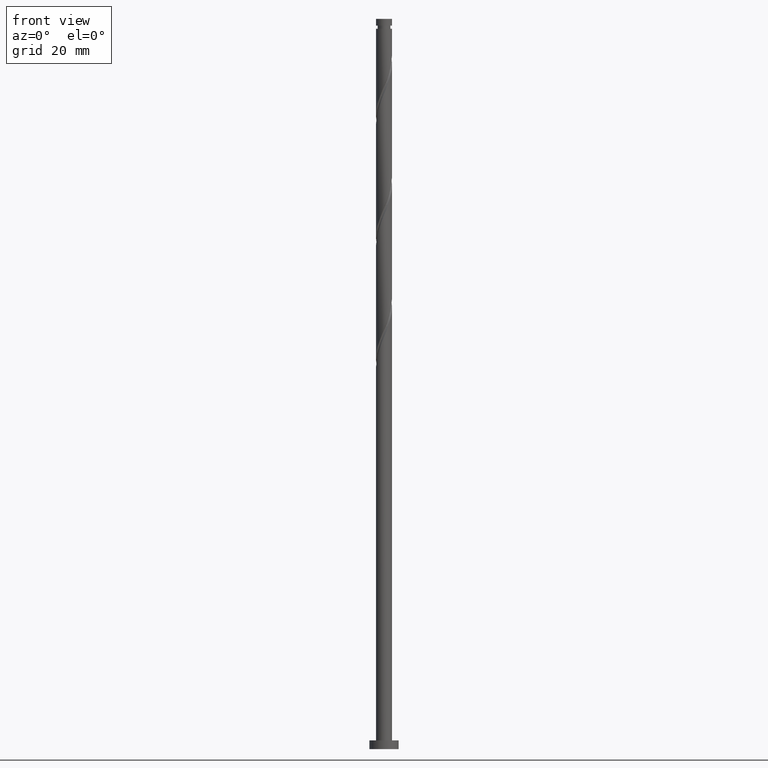
[diagram: clean part render]
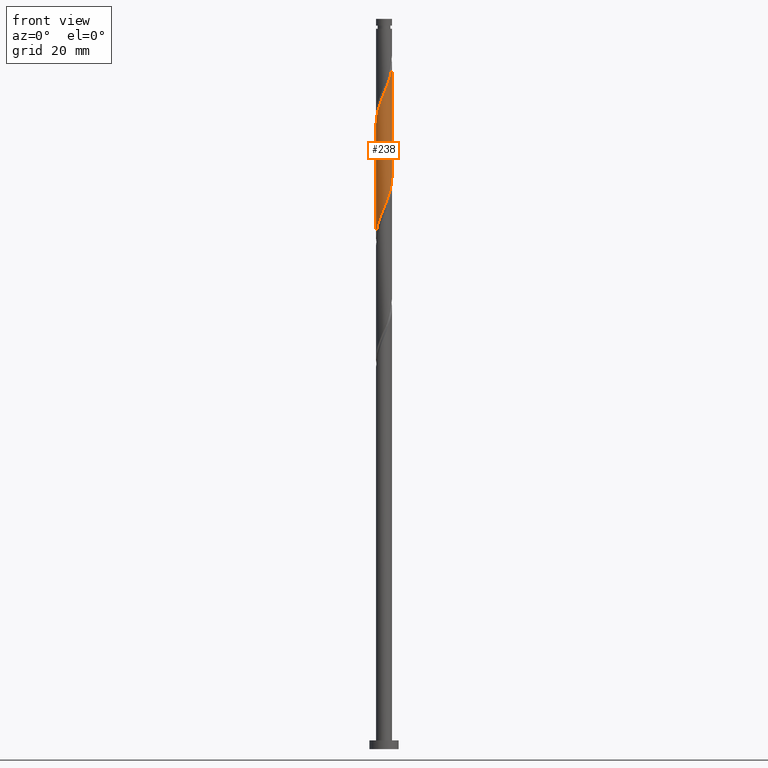
[diagram: same view with one face highlighted and labeled with its STEP entity id]
A machine part, front view. The second image highlights one B-rep face of the part: STEP entity #238.
In plain terms, the highlighted cylindrical surface (edge-blend (fillet) strip) has radius 2.75 mm, axis along (-0, -0, -1).
Its self-contained STEP definition (entity closure, byte-faithful):
#70 = CARTESIAN_POINT ( 'NONE',  ( 2.503981196414451382, -1.184936436776526270, 192.9100005478137518 ) ) ;
#86 = CARTESIAN_POINT ( 'NONE',  ( -2.528811026136764006, -1.080562258312367074, 177.6856415734547738 ) ) ;
#99 = CARTESIAN_POINT ( 'NONE',  ( 2.714793904153014026, -0.5512624140746728019, 194.5125646503778967 ) ) ;
#105 = EDGE_CURVE ( 'NONE', #123, #748, #1307, .T. ) ;
#114 = CARTESIAN_POINT ( 'NONE',  ( 0.5472430904086433845, -2.695000000000004725, 225.7625646503778682 ) ) ;
#123 = VERTEX_POINT ( 'NONE', #894 ) ;
#166 = DIRECTION ( 'NONE',  ( -0.000000000000000000, -0.000000000000000000, -1.000000000000000000 ) ) ;
#170 = CARTESIAN_POINT ( 'NONE',  ( 2.749999999999999556, 2.811716444257881185E-15, 195.8404865262697285 ) ) ;
#213 = CARTESIAN_POINT ( 'NONE',  ( 0.1136145144797496981, -2.747652041671130085, 185.6984620862752706 ) ) ;
#235 = CARTESIAN_POINT ( 'NONE',  ( 2.397607013737355963, -1.387615508300216627, 231.3715390093522615 ) ) ;
#238 = ADVANCED_FACE ( 'NONE', ( #890 ), #1715, .T. ) ;
#245 =( BOUNDED_CURVE ( )  B_SPLINE_CURVE ( 2, ( #944, #1373, #1452, #1210, #551, #1501, #1797, #1099, #824, #1609, #1182, #679, #1808, #1380, #1490, #1220, #114, #397, #625, #536, #1752, #668, #758, #235, #543, #1081, #1093, #802, #660 ),
 .UNSPECIFIED., .F., .T. ) 
 B_SPLINE_CURVE_WITH_KNOTS ( ( 3, 2, 2, 2, 2, 2, 2, 2, 2, 2, 2, 2, 2, 2, 3 ),
 ( 0.5545271625973832164, 0.5576923076923077094, 0.5673076923076922906, 0.5769230769230768718, 0.5865384615384615641, 0.5961538461538461453, 0.6057692307692308376, 0.6153846153846154188, 0.6250000000000000000, 0.6346153846153845812, 0.6442307692307691624, 0.6538461538461538547, 0.6634615384615384359, 0.6730769230769231282, 0.6795271625973832164 ),
 .UNSPECIFIED. ) 
 CURVE ( )  GEOMETRIC_REPRESENTATION_ITEM ( )  RATIONAL_B_SPLINE_CURVE ( ( 0.9061636035682953949, 0.9069090390690839332, 0.9090909090909405910, 0.9024626128164440209, 0.9090909090909405910, 0.9024626128164440209, 0.9090909090909405910, 0.9024626128164440209, 0.9090909090909405910, 0.9024626128164440209, 0.9090909090909405910, 0.9024626128164440209, 0.9090909090909405910, 0.9024626128164440209, 0.9090909090909405910, 0.9024626128164440209, 0.9090909090909405910, 0.9024626128164440209, 0.9090909090909405910, 0.9024626128164440209, 0.9090909090909405910, 0.9024626128164440209, 0.9090909090909405910, 0.9024626128164440209, 0.9090909090909405910, 0.9024626128164440209, 0.9090909090909405910, 0.9046444828383006787, 0.9061636035682953949 ) ) 
 REPRESENTATION_ITEM ( '' )  );
#287 = EDGE_LOOP ( 'NONE', ( #910, #956, #1049, #665 ) ) ;
#359 = CARTESIAN_POINT ( 'NONE',  ( -2.397607013737352855, -1.387615508300211964, 178.4869236247368747 ) ) ;
#397 = CARTESIAN_POINT ( 'NONE',  ( 0.8744753351926358720, -2.628552658657907770, 226.5638467016599122 ) ) ;
#457 = DIRECTION ( 'NONE',  ( -1.000000000000000000, 0.000000000000000000, 0.000000000000000000 ) ) ;
#463 = AXIS2_PLACEMENT_3D ( 'NONE', #1037, #166, #457 ) ;
#464 = EDGE_CURVE ( 'NONE', #1674, #123, #245, .T. ) ;
#501 = CARTESIAN_POINT ( 'NONE',  ( -1.736988640557373564, -2.131987444281659982, 180.8907697785829498 ) ) ;
#511 = CARTESIAN_POINT ( 'NONE',  ( 1.088498638932923424, -2.547384325978114372, 188.1023082401214026 ) ) ;
#519 = CARTESIAN_POINT ( 'NONE',  ( -1.478118496867735443, -2.342896049852674079, 181.6920518298649938 ) ) ;
#530 = CARTESIAN_POINT ( 'NONE',  ( 2.741313281104775346, -0.2184067188494102918, 195.3138467016599122 ) ) ;
#536 = CARTESIAN_POINT ( 'NONE',  ( 1.478118496867736553, -2.342896049852680296, 228.1664108042240571 ) ) ;
#541 = CARTESIAN_POINT ( 'NONE',  ( -2.750000000000002220, -0.2234552059768610544, 175.5468539302847262 ) ) ;
#543 = CARTESIAN_POINT ( 'NONE',  ( 2.528811026136768447, -1.080562258312370183, 232.1728210606342770 ) ) ;
#551 = CARTESIAN_POINT ( 'NONE',  ( -2.609387550283738033, -0.8680994254256000353, 216.1471800349932835 ) ) ;
#621 =( BOUNDED_CURVE ( )  B_SPLINE_CURVE ( 2, ( #1096, #949, #530, #99, #1666, #70, #916, #1484, #674, #937, #1622, #511, #1503, #1191, #213, #1465, #1054, #1226, #1086, #519, #501, #1497, #1655, #359, #86, #656, #1803, #541, #1073 ),
 .UNSPECIFIED., .F., .T. ) 
 B_SPLINE_CURVE_WITH_KNOTS ( ( 3, 2, 2, 2, 2, 2, 2, 2, 2, 2, 2, 2, 2, 2, 3 ),
 ( 0.5545271625973833274, 0.5576923076923077094, 0.5673076923076922906, 0.5769230769230768718, 0.5865384615384615641, 0.5961538461538461453, 0.6057692307692307265, 0.6153846153846154188, 0.6250000000000000000, 0.6346153846153845812, 0.6442307692307692735, 0.6538461538461538547, 0.6634615384615384359, 0.6730769230769231282, 0.6795271625973836604 ),
 .UNSPECIFIED. ) 
 CURVE ( )  GEOMETRIC_REPRESENTATION_ITEM ( )  RATIONAL_B_SPLINE_CURVE ( ( 0.9061636035682884005, 0.9069090390690770498, 0.9090909090909334855, 0.9024626128164369154, 0.9090909090909334855, 0.9024626128164369154, 0.9090909090909334855, 0.9024626128164369154, 0.9090909090909334855, 0.9024626128164369154, 0.9090909090909334855, 0.9024626128164369154, 0.9090909090909334855, 0.9024626128164369154, 0.9090909090909334855, 0.9024626128164369154, 0.9090909090909334855, 0.9024626128164369154, 0.9090909090909334855, 0.9024626128164369154, 0.9090909090909334855, 0.9024626128164369154, 0.9090909090909334855, 0.9024626128164369154, 0.9090909090909334855, 0.9024626128164369154, 0.9090909090909334855, 0.9046444828382932402, 0.9061636035682884005 ) ) 
 REPRESENTATION_ITEM ( '' )  );
#625 = CARTESIAN_POINT ( 'NONE',  ( 1.176296916030185935, -2.485724354255294255, 227.3651287529420131 ) ) ;
#656 = CARTESIAN_POINT ( 'NONE',  ( -2.660015038536175602, -0.7735090083245215187, 176.8843595221727298 ) ) ;
#660 = CARTESIAN_POINT ( 'NONE',  ( 2.750000000000003553, -3.140747091990160614E-16, 234.8513094411526367 ) ) ;
#665 = ORIENTED_EDGE ( 'NONE', *, *, #1604, .F. ) ;
#668 = CARTESIAN_POINT ( 'NONE',  ( 1.995858784247013684, -1.921078838710650327, 229.7689749067881735 ) ) ;
#674 = CARTESIAN_POINT ( 'NONE',  ( 1.907072011030042091, -1.981306726568561771, 190.5061543939675914 ) ) ;
#679 = CARTESIAN_POINT ( 'NONE',  ( -1.088498638932926976, -2.547384325978117925, 221.7561543939675630 ) ) ;
#748 = VERTEX_POINT ( 'NONE', #170 ) ;
#758 = CARTESIAN_POINT ( 'NONE',  ( 2.196732898992184158, -1.654347173505433144, 230.5702569580701891 ) ) ;
#767 = LINE ( 'NONE', #1062, #1050 ) ;
#773 = CARTESIAN_POINT ( 'NONE',  ( -2.750000000000003553, -1.046915697330053620E-16, 214.0179761078192939 ) ) ;
#802 = CARTESIAN_POINT ( 'NONE',  ( 2.750000000000003553, -0.2234552059768777077, 234.3116087038043531 ) ) ;
#824 = CARTESIAN_POINT ( 'NONE',  ( -1.907072011030046310, -1.981306726568564658, 219.3523082401214879 ) ) ;
#846 = CARTESIAN_POINT ( 'NONE',  ( -2.749999999999999556, 1.915855726114013589E-14, 175.0071531929363289 ) ) ;
#890 = FACE_OUTER_BOUND ( 'NONE', #287, .T. ) ;
#894 = CARTESIAN_POINT ( 'NONE',  ( 2.750000000000003553, -3.140747091990160614E-16, 234.8513094411526367 ) ) ;
#910 = ORIENTED_EDGE ( 'NONE', *, *, #105, .F. ) ;
#916 = CARTESIAN_POINT ( 'NONE',  ( 2.325813699778025434, -1.467341348809077850, 192.1087184965317078 ) ) ;
#937 = CARTESIAN_POINT ( 'NONE',  ( 1.666497818918481588, -2.212867192295493446, 189.7048723426855190 ) ) ;
#944 = CARTESIAN_POINT ( 'NONE',  ( -2.750000000000003553, -1.046915697330053743E-16, 214.0179761078192939 ) ) ;
#949 = CARTESIAN_POINT ( 'NONE',  ( 2.749999999999999112, -0.1093761084261168498, 195.5763156106367262 ) ) ;
#956 = ORIENTED_EDGE ( 'NONE', *, *, #464, .F. ) ;
#1037 = CARTESIAN_POINT ( 'NONE',  ( 0.000000000000000000, 0.000000000000000000, 250.0000000000000000 ) ) ;
#1049 = ORIENTED_EDGE ( 'NONE', *, *, #1668, .T. ) ;
#1050 = VECTOR ( 'NONE', #1336, 1000.000000000000000 ) ;
#1054 = CARTESIAN_POINT ( 'NONE',  ( -0.5472430904086434955, -2.694999999999998508, 184.0958979837111258 ) ) ;
#1062 = CARTESIAN_POINT ( 'NONE',  ( -2.750000000000000000, 0.000000000000000000, 250.0000000000000000 ) ) ;
#1073 = CARTESIAN_POINT ( 'NONE',  ( -2.749999999999999556, 1.915855726114013589E-14, 175.0071531929363289 ) ) ;
#1081 = CARTESIAN_POINT ( 'NONE',  ( 2.660015038536180043, -0.7735090083245254045, 232.9741031119163495 ) ) ;
#1086 = CARTESIAN_POINT ( 'NONE',  ( -1.176296916030186157, -2.485724354255287594, 182.4933338811470662 ) ) ;
#1093 = CARTESIAN_POINT ( 'NONE',  ( 2.713923848296361019, -0.4439789923501908930, 233.7753851631983935 ) ) ;
#1096 = CARTESIAN_POINT ( 'NONE',  ( 2.749999999999999556, 2.811716444257881185E-15, 195.8404865262697285 ) ) ;
#1099 = CARTESIAN_POINT ( 'NONE',  ( -2.147646203141606591, -1.749746260841631651, 218.5510261888393586 ) ) ;
#1182 = CARTESIAN_POINT ( 'NONE',  ( -1.377498228925706947, -2.380125759136808128, 220.9548723426855759 ) ) ;
#1191 = CARTESIAN_POINT ( 'NONE',  ( 0.4472398745841510426, -2.733856742000163820, 186.4997441375572862 ) ) ;
#1210 = CARTESIAN_POINT ( 'NONE',  ( -2.714793904153019355, -0.5512624140746725798, 215.3458979837111826 ) ) ;
#1220 = CARTESIAN_POINT ( 'NONE',  ( 0.2200108456246498978, -2.761447341342100348, 224.9612825990958527 ) ) ;
#1226 = CARTESIAN_POINT ( 'NONE',  ( -0.8744753351926364271, -2.628552658657902885, 183.2946159324291671 ) ) ;
#1233 = VERTEX_POINT ( 'NONE', #846 ) ;
#1249 = VECTOR ( 'NONE', #1743, 1000.000000000000000 ) ;
#1307 = LINE ( 'NONE', #1592, #1249 ) ;
#1336 = DIRECTION ( 'NONE',  ( -0.000000000000000000, -0.000000000000000000, -1.000000000000000000 ) ) ;
#1373 = CARTESIAN_POINT ( 'NONE',  ( -2.750000000000004441, -0.1093761084261107158, 214.2821470234522678 ) ) ;
#1380 = CARTESIAN_POINT ( 'NONE',  ( -0.4472398745841543177, -2.733856742000169149, 223.3587184965316794 ) ) ;
#1452 = CARTESIAN_POINT ( 'NONE',  ( -2.741313281104781119, -0.2184067188494077938, 214.5446159324291386 ) ) ;
#1465 = CARTESIAN_POINT ( 'NONE',  ( -0.2200108456246517574, -2.761447341342095019, 184.8971800349932266 ) ) ;
#1484 = CARTESIAN_POINT ( 'NONE',  ( 2.147646203141600818, -1.749746260841629875, 191.3074364452496638 ) ) ;
#1490 = CARTESIAN_POINT ( 'NONE',  ( -0.1136145144797522794, -2.747652041671134082, 224.1600005478138087 ) ) ;
#1497 = CARTESIAN_POINT ( 'NONE',  ( -1.995858784247010798, -1.921078838710645442, 180.0894877273009342 ) ) ;
#1501 = CARTESIAN_POINT ( 'NONE',  ( -2.503981196414456711, -1.184936436776527824, 216.9484620862752422 ) ) ;
#1503 = CARTESIAN_POINT ( 'NONE',  ( 0.7678692567585380102, -2.640620533989138874, 187.3010261888393870 ) ) ;
#1592 = CARTESIAN_POINT ( 'NONE',  ( 2.750000000000000000, 3.367778697655221012E-16, 250.0000000000000000 ) ) ;
#1604 = EDGE_CURVE ( 'NONE', #748, #1233, #621, .T. ) ;
#1609 = CARTESIAN_POINT ( 'NONE',  ( -1.666497818918486251, -2.212867192295496555, 220.1535902914035034 ) ) ;
#1622 = CARTESIAN_POINT ( 'NONE',  ( 1.377498228925702506, -2.380125759136805463, 188.9035902914035319 ) ) ;
#1655 = CARTESIAN_POINT ( 'NONE',  ( -2.196732898992181937, -1.654347173505428925, 179.2882056760188902 ) ) ;
#1666 = CARTESIAN_POINT ( 'NONE',  ( 2.609387550283733592, -0.8680994254256009235, 193.7112825990958527 ) ) ;
#1668 = EDGE_CURVE ( 'NONE', #1674, #1233, #767, .T. ) ;
#1674 = VERTEX_POINT ( 'NONE', #773 ) ;
#1715 = CYLINDRICAL_SURFACE ( 'NONE', #463, 2.750000000000000000 ) ;
#1743 = DIRECTION ( 'NONE',  ( -0.000000000000000000, -0.000000000000000000, -1.000000000000000000 ) ) ;
#1752 = CARTESIAN_POINT ( 'NONE',  ( 1.736988640557375785, -2.131987444281664867, 228.9676928555060726 ) ) ;
#1797 = CARTESIAN_POINT ( 'NONE',  ( -2.325813699778032095, -1.467341348809079626, 217.7497441375573430 ) ) ;
#1803 = CARTESIAN_POINT ( 'NONE',  ( -2.713923848296357022, -0.4439789923501882840, 176.0830774708906858 ) ) ;
#1808 = CARTESIAN_POINT ( 'NONE',  ( -0.7678692567585404527, -2.640620533989142871, 222.5574364452496923 ) ) ;